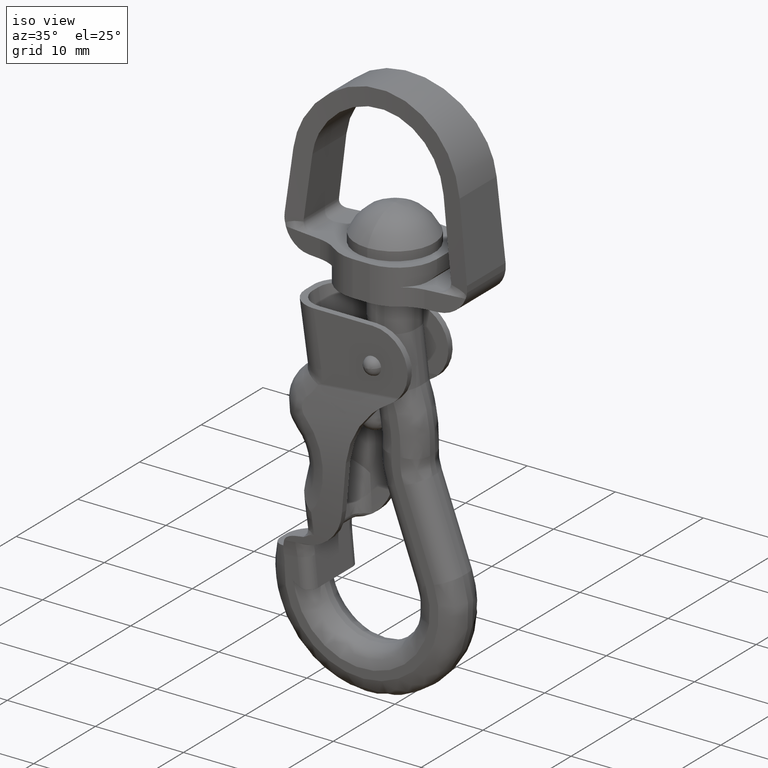
[diagram: clean part render]
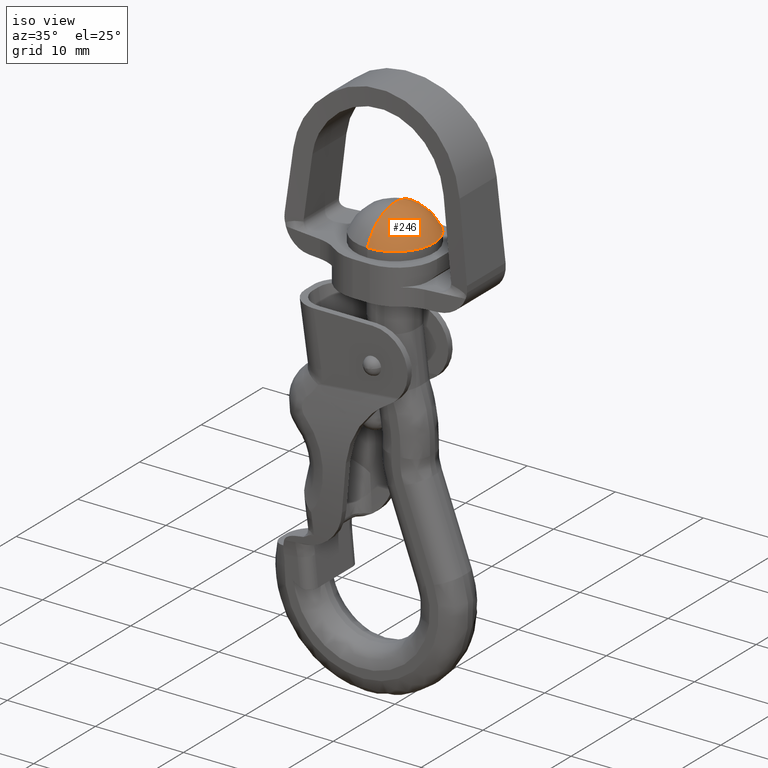
[diagram: same view with one face highlighted and labeled with its STEP entity id]
A machine part, iso view. The second image highlights one B-rep face of the part: STEP entity #246.
In plain terms, the highlighted spherical surface has radius 4.8333 mm.
Its self-contained STEP definition (entity closure, byte-faithful):
#246=ADVANCED_FACE('',(#1325),#1324,.T.);
#1324=SPHERICAL_SURFACE('',#3272,4.83333333333E+00);
#1325=FACE_OUTER_BOUND('',#3273,.T.);
#3269=CARTESIAN_POINT('',(0.00000000000E+00,-4.54747350886E-13,-8.33333333333E-01));
#3270=DIRECTION('',(-0.00000000000E+00,-0.00000000000E+00,-1.00000000000E+00));
#3271=DIRECTION('',(-4.04453249759E-21,1.00000000000E+00,0.00000000000E+00));
#3272=AXIS2_PLACEMENT_3D('',#3269,#3270,#3271);
#3273=EDGE_LOOP('',(#6059,#6060,#6061));
#6059=ORIENTED_EDGE('',*,*,#6885,.T.);
#6060=ORIENTED_EDGE('',*,*,#6884,.F.);
#6061=ORIENTED_EDGE('',*,*,#6886,.F.);
#6884=EDGE_CURVE('',#8868,#8854,#8881,.T.);
#6885=EDGE_CURVE('',#8887,#8854,#8888,.T.);
#6886=EDGE_CURVE('',#8887,#8868,#8894,.T.);
#8854=VERTEX_POINT('',#12177);
#8868=VERTEX_POINT('',#12186);
#8881=CIRCLE('',#12197,4.47213595500E+00);
#8887=VERTEX_POINT('',#12198);
#8888=(BOUNDED_CURVE() B_SPLINE_CURVE(2,(#12199,#12200,#12201),.UNSPECIFIED.,.F.,.F.) B_SPLINE_CURVE_WITH_KNOTS((3,3),(0.00000000000E+00,1.00000000000E+00),.UNSPECIFIED.) CURVE() GEOMETRIC_REPRESENTATION_ITEM() RATIONAL_B_SPLINE_CURVE((1.00000000000E+00,8.30454798537E-01,1.00000000000E+00)) REPRESENTATION_ITEM('') );
#8894=(BOUNDED_CURVE() B_SPLINE_CURVE(2,(#12202,#12203,#12204),.UNSPECIFIED.,.F.,.F.) B_SPLINE_CURVE_WITH_KNOTS((3,3),(0.00000000000E+00,1.00000000000E+00),.UNSPECIFIED.) CURVE() GEOMETRIC_REPRESENTATION_ITEM() RATIONAL_B_SPLINE_CURVE((7.50000000000E-01,6.22841098903E-01,7.50000000000E-01)) REPRESENTATION_ITEM('') );
#12177=CARTESIAN_POINT('',(-3.66836692410E-11,-4.47213595500E+00,9.99999999998E-01));
#12186=CARTESIAN_POINT('',(4.64141588487E-04,4.47213593091E+00,9.99999999998E-01));
#12194=CARTESIAN_POINT('',(0.00000000000E+00,4.54747350886E-13,9.99999999998E-01));
#12195=DIRECTION('',(-0.00000000000E+00,0.00000000000E+00,-1.00000000000E+00));
#12196=DIRECTION('',(-1.00000000000E+00,-1.22460635382E-16,0.00000000000E+00));
#12197=AXIS2_PLACEMENT_3D('',#12194,#12195,#12196);
#12198=CARTESIAN_POINT('',(-3.62429977427E-32,-4.55043307196E-13,4.00000000000E+00));
#12199=CARTESIAN_POINT('',(-3.62429977427E-32,-4.55043307196E-13,4.00000000000E+00));
#12200=CARTESIAN_POINT('',(-3.97053942660E-16,-3.24229856738E+00,4.00000000000E+00));
#12201=CARTESIAN_POINT('',(-5.47660610565E-16,-4.47213595500E+00,9.99999999998E-01));
#12202=CARTESIAN_POINT('',(3.28692043842E-32,-4.54451394577E-13,4.00000000000E+00));
#12203=CARTESIAN_POINT('',(3.56502814789E-16,3.24229856738E+00,4.00000000000E+00));
#12204=CARTESIAN_POINT('',(8.88178419700E-16,4.47213595500E+00,9.99999999998E-01));